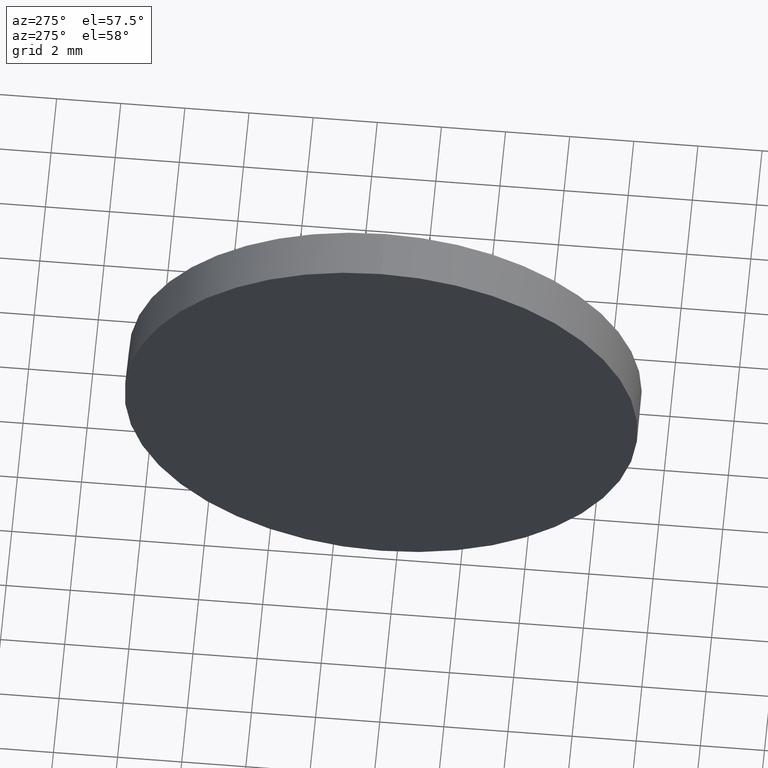
[diagram: clean part render]
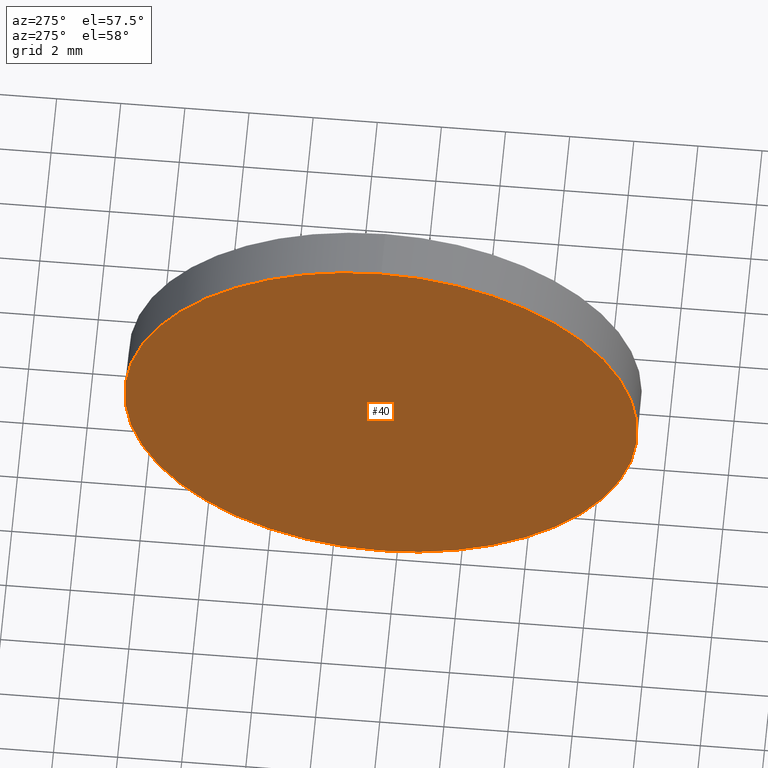
[diagram: same view with one face highlighted and labeled with its STEP entity id]
A machine part, auxiliary view. The second image highlights one B-rep face of the part: STEP entity #40.
In plain terms, the highlighted planar face has unit normal (1, 0, 0).
Its self-contained STEP definition (entity closure, byte-faithful):
#2 = DIRECTION ( 'NONE',  ( 1.000000000000000000, 0.0000000000000000000, 0.0000000000000000000 ) ) ;
#6 = EDGE_CURVE ( 'NONE', #140, #27, #28, .T. ) ;
#7 = DIRECTION ( 'NONE',  ( -1.000000000000000000, -0.0000000000000000000, -0.0000000000000000000 ) ) ;
#17 = CARTESIAN_POINT ( 'NONE',  ( 666.0736510589196100, 92.48951843981319600, 0.0000000000000000000 ) ) ;
#18 = DIRECTION ( 'NONE',  ( 0.0000000000000000000, 0.0000000000000000000, -1.000000000000000000 ) ) ;
#23 = FACE_OUTER_BOUND ( 'NONE', #161, .T. ) ;
#27 = VERTEX_POINT ( 'NONE', #149 ) ;
#28 = CIRCLE ( 'NONE', #43, 8.000000000000007100 ) ;
#30 = CARTESIAN_POINT ( 'NONE',  ( 666.0736510589196100, 92.48951843981319600, 0.0000000000000000000 ) ) ;
#33 = DIRECTION ( 'NONE',  ( -1.000000000000000000, -0.0000000000000000000, -0.0000000000000000000 ) ) ;
#40 = ADVANCED_FACE ( 'NONE', ( #23 ), #111, .F. ) ;
#43 = AXIS2_PLACEMENT_3D ( 'NONE', #30, #33, #126 ) ;
#73 = EDGE_CURVE ( 'NONE', #27, #140, #89, .T. ) ;
#89 = CIRCLE ( 'NONE', #110, 8.000000000000007100 ) ;
#95 = ORIENTED_EDGE ( 'NONE', *, *, #6, .T. ) ;
#110 = AXIS2_PLACEMENT_3D ( 'NONE', #151, #7, #156 ) ;
#111 = PLANE ( 'NONE',  #124 ) ;
#124 = AXIS2_PLACEMENT_3D ( 'NONE', #17, #2, #18 ) ;
#126 = DIRECTION ( 'NONE',  ( 0.0000000000000000000, 0.0000000000000000000, 1.000000000000000000 ) ) ;
#135 = CARTESIAN_POINT ( 'NONE',  ( 666.0736510589196100, 92.48951843981319600, -8.000000000000007100 ) ) ;
#140 = VERTEX_POINT ( 'NONE', #135 ) ;
#149 = CARTESIAN_POINT ( 'NONE',  ( 666.0736510589196100, 92.48951843981319600, 8.000000000000007100 ) ) ;
#151 = CARTESIAN_POINT ( 'NONE',  ( 666.0736510589196100, 92.48951843981319600, 0.0000000000000000000 ) ) ;
#156 = DIRECTION ( 'NONE',  ( 0.0000000000000000000, 0.0000000000000000000, 1.000000000000000000 ) ) ;
#161 = EDGE_LOOP ( 'NONE', ( #173, #95 ) ) ;
#173 = ORIENTED_EDGE ( 'NONE', *, *, #73, .T. ) ;